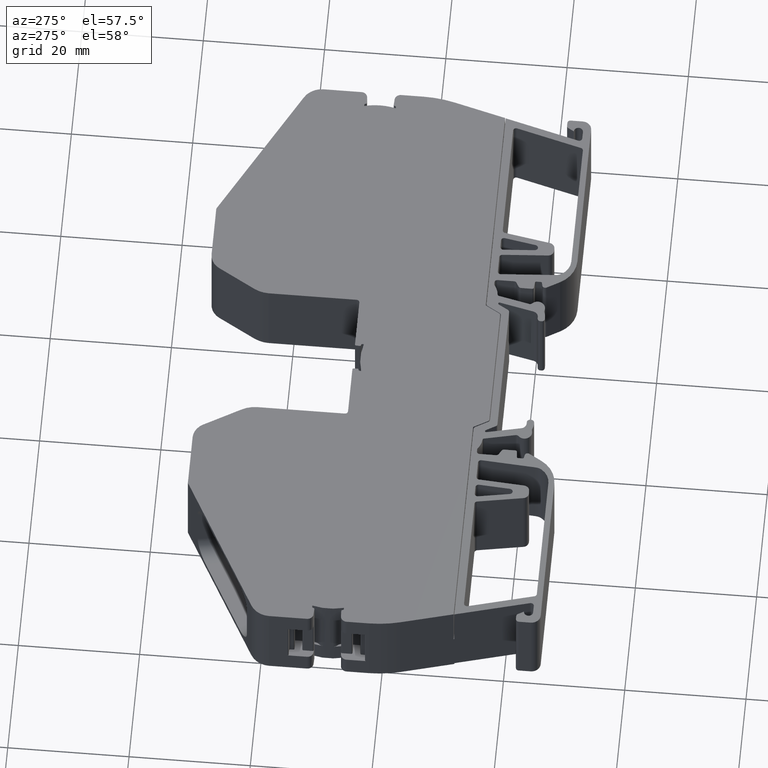
[diagram: clean part render]
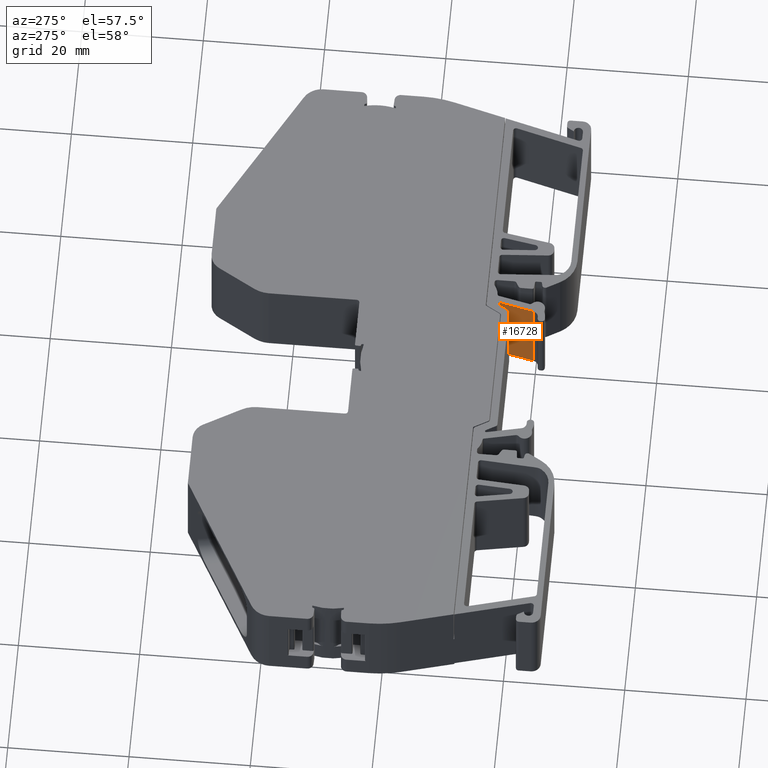
[diagram: same view with one face highlighted and labeled with its STEP entity id]
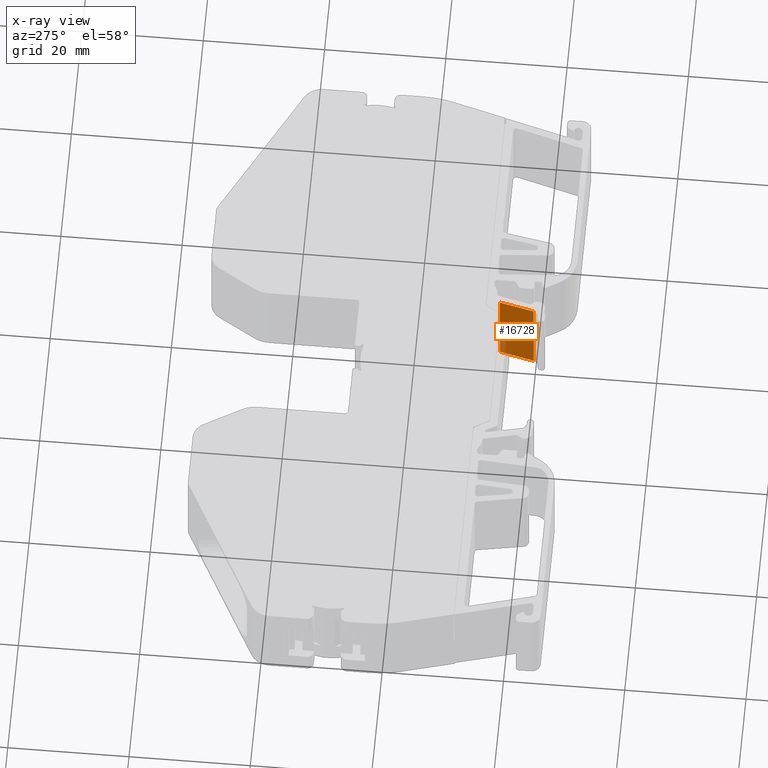
[diagram: x-ray of the same camera — body ghosted, the highlighted face saturated]
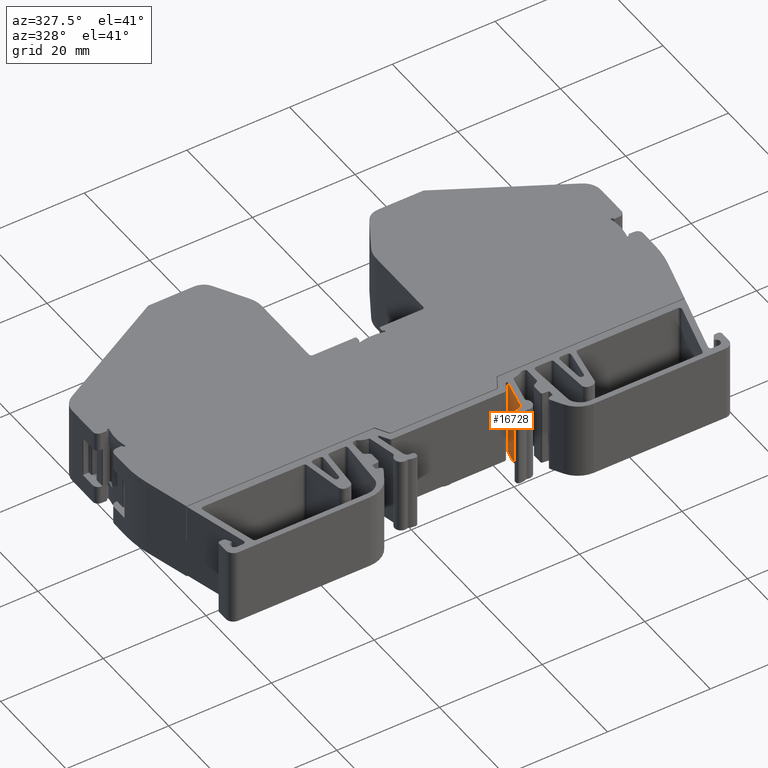
[diagram: same view with one face highlighted and labeled with its STEP entity id]
A machine part, auxiliary view. The second image highlights one B-rep face of the part: STEP entity #16728.
The next image is the same camera in x-ray: the body ghosted, the highlighted face saturated — about 6% of this face is hidden behind the body in this view.
A second angle (auxiliary view) of the same face is appended — the face is thin or edge-on in the first view.
In plain terms, the highlighted planar face has unit normal (0.9763, -0.2164, 0).
Its self-contained STEP definition (entity closure, byte-faithful):
#1255 = CARTESIAN_POINT ( 'NONE',  ( 1342.668709010578800, 406.0867612885537000, 0.0000000000000000000 ) ) ;
#1276 = CARTESIAN_POINT ( 'NONE',  ( 1342.668709010578800, 406.0867612885537000, 15.05000000000000200 ) ) ;
#1306 = CARTESIAN_POINT ( 'NONE',  ( 1341.411232815256000, 400.4146596745042600, 15.05000000000000200 ) ) ;
#1356 = CARTESIAN_POINT ( 'NONE',  ( 1341.411232815256000, 400.4146596745042600, 0.0000000000000000000 ) ) ;
#3075 = FACE_OUTER_BOUND ( 'NONE', #5102, .T. ) ;
#3086 = DIRECTION ( 'NONE',  ( 0.9762959510532245300, -0.2164398668385283900, 0.0000000000000000000 ) ) ;
#3100 = DIRECTION ( 'NONE',  ( 0.2164398668385283900, 0.9762959510532245300, 0.0000000000000000000 ) ) ;
#3123 = PLANE ( 'NONE',  #6945 ) ;
#3125 = CARTESIAN_POINT ( 'NONE',  ( 1326.254994271022000, 332.0493693974989400, 15.00000000000000000 ) ) ;
#3372 = EDGE_CURVE ( 'NONE', #11379, #11418, #12922, .T. ) ;
#3381 = EDGE_CURVE ( 'NONE', #11322, #11338, #12985, .T. ) ;
#3977 = EDGE_CURVE ( 'NONE', #11418, #11322, #8690, .T. ) ;
#4043 = EDGE_CURVE ( 'NONE', #11338, #11379, #8781, .T. ) ;
#5102 = EDGE_LOOP ( 'NONE', ( #12858, #12917, #12883, #12799 ) ) ;
#6945 = AXIS2_PLACEMENT_3D ( 'NONE', #3125, #3086, #3100 ) ;
#8677 = DIRECTION ( 'NONE',  ( 0.2164398668384860900, 0.9762959510532339700, 0.0000000000000000000 ) ) ;
#8690 = LINE ( 'NONE', #8703, #13411 ) ;
#8703 = CARTESIAN_POINT ( 'NONE',  ( 1341.411232815256200, 400.4146596745042600, 0.0000000000000000000 ) ) ;
#8781 = LINE ( 'NONE', #8798, #13843 ) ;
#8798 = CARTESIAN_POINT ( 'NONE',  ( 1342.668709010578600, 406.0867612885538200, 15.05000000000000100 ) ) ;
#8805 = DIRECTION ( 'NONE',  ( -0.2164398668384860900, -0.9762959510532339700, 0.0000000000000000000 ) ) ;
#11322 = VERTEX_POINT ( 'NONE', #1255 ) ;
#11338 = VERTEX_POINT ( 'NONE', #1276 ) ;
#11379 = VERTEX_POINT ( 'NONE', #1306 ) ;
#11418 = VERTEX_POINT ( 'NONE', #1356 ) ;
#12799 = ORIENTED_EDGE ( 'NONE', *, *, #4043, .F. ) ;
#12858 = ORIENTED_EDGE ( 'NONE', *, *, #3381, .F. ) ;
#12883 = ORIENTED_EDGE ( 'NONE', *, *, #3372, .F. ) ;
#12917 = ORIENTED_EDGE ( 'NONE', *, *, #3977, .F. ) ;
#12922 = LINE ( 'NONE', #12979, #13789 ) ;
#12948 = DIRECTION ( 'NONE',  ( 0.0000000000000000000, -0.0000000000000000000, -1.000000000000000000 ) ) ;
#12979 = CARTESIAN_POINT ( 'NONE',  ( 1341.411232815256000, 400.4146596745042600, 15.00000000000000000 ) ) ;
#12985 = LINE ( 'NONE', #13140, #13784 ) ;
#13039 = DIRECTION ( 'NONE',  ( -0.0000000000000000000, 0.0000000000000000000, 1.000000000000000000 ) ) ;
#13140 = CARTESIAN_POINT ( 'NONE',  ( 1342.668709010578600, 406.0867612885538200, 15.00000000000000000 ) ) ;
#13411 = VECTOR ( 'NONE', #8677, 999.9999999999998900 ) ;
#13784 = VECTOR ( 'NONE', #13039, 1000.000000000000000 ) ;
#13789 = VECTOR ( 'NONE', #12948, 1000.000000000000000 ) ;
#13843 = VECTOR ( 'NONE', #8805, 999.9999999999998900 ) ;
#16728 = ADVANCED_FACE ( 'NONE', ( #3075 ), #3123, .F. ) ;